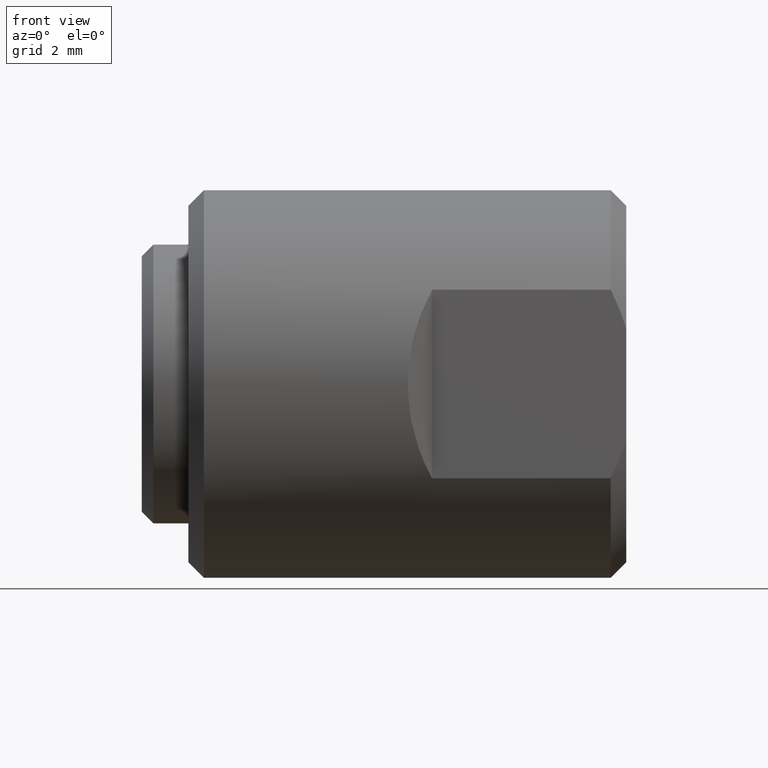
[diagram: clean part render]
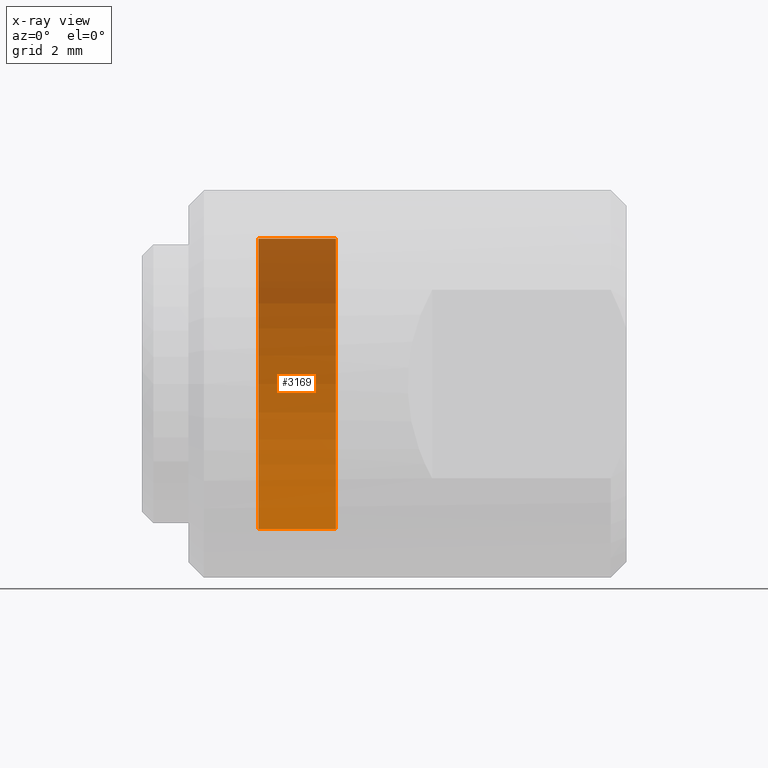
[diagram: x-ray — body ghosted, one internal face saturated and labeled with its STEP entity id]
A machine part, front view, then the same camera in x-ray: the body is ghosted and one INTERNAL B-rep face — a face not visible from any outside direction — is saturated and labeled: STEP entity #3169.
In plain terms, the highlighted cylindrical surface (partial cylindrical patch) has radius 4.7498 mm, axis along (-1, -0, -0).
Its self-contained STEP definition (entity closure, byte-faithful):
#305 = AXIS2_PLACEMENT_3D ( 'NONE', #2286, #1515, #10898 ) ;
#365 = ORIENTED_EDGE ( 'NONE', *, *, #1995, .F. ) ;
#517 = AXIS2_PLACEMENT_3D ( 'NONE', #4146, #4031, #1264 ) ;
#607 = EDGE_CURVE ( 'NONE', #10208, #2637, #6299, .T. ) ;
#954 = VERTEX_POINT ( 'NONE', #1686 ) ;
#1264 = DIRECTION ( 'NONE',  ( 0.0000000000000000000, 0.0000000000000000000, 1.000000000000000000 ) ) ;
#1515 = DIRECTION ( 'NONE',  ( -1.000000000000000000, -0.0000000000000000000, -0.0000000000000000000 ) ) ;
#1575 = CARTESIAN_POINT ( 'NONE',  ( 0.0000000000000000000, 0.0000000000000000000, 0.1869999999999999996 ) ) ;
#1686 = CARTESIAN_POINT ( 'NONE',  ( 0.1250000000000000278, 0.0000000000000000000, 0.1869999999999999996 ) ) ;
#1995 = EDGE_CURVE ( 'NONE', #954, #7294, #3500, .T. ) ;
#2286 = CARTESIAN_POINT ( 'NONE',  ( 0.02499999999999999098, 0.0000000000000000000, 0.0000000000000000000 ) ) ;
#2637 = VERTEX_POINT ( 'NONE', #3898 ) ;
#3169 = ADVANCED_FACE ( 'NONE', ( #7851 ), #10876, .F. ) ;
#3500 = CIRCLE ( 'NONE', #5494, 0.1869999999999999996 ) ;
#3707 = CARTESIAN_POINT ( 'NONE',  ( 0.1250000000000000278, 0.0000000000000000000, 0.0000000000000000000 ) ) ;
#3898 = CARTESIAN_POINT ( 'NONE',  ( 0.02499999999999999098, 2.290089514405550973E-17, -0.1869999999999999996 ) ) ;
#4031 = DIRECTION ( 'NONE',  ( -1.000000000000000000, -0.0000000000000000000, -0.0000000000000000000 ) ) ;
#4146 = CARTESIAN_POINT ( 'NONE',  ( 0.0000000000000000000, 0.0000000000000000000, 0.0000000000000000000 ) ) ;
#4853 = ORIENTED_EDGE ( 'NONE', *, *, #12226, .T. ) ;
#5494 = AXIS2_PLACEMENT_3D ( 'NONE', #3707, #7532, #11379 ) ;
#6086 = CARTESIAN_POINT ( 'NONE',  ( 0.02499999999999999098, 0.0000000000000000000, 0.1869999999999999996 ) ) ;
#6299 = CIRCLE ( 'NONE', #305, 0.1869999999999999996 ) ;
#6453 = EDGE_CURVE ( 'NONE', #7294, #2637, #11372, .T. ) ;
#7294 = VERTEX_POINT ( 'NONE', #12152 ) ;
#7532 = DIRECTION ( 'NONE',  ( -1.000000000000000000, -0.0000000000000000000, -0.0000000000000000000 ) ) ;
#7851 = FACE_OUTER_BOUND ( 'NONE', #9735, .T. ) ;
#8194 = VECTOR ( 'NONE', #9978, 39.37007874015748143 ) ;
#8641 = ORIENTED_EDGE ( 'NONE', *, *, #607, .T. ) ;
#9550 = DIRECTION ( 'NONE',  ( -1.000000000000000000, -0.0000000000000000000, -0.0000000000000000000 ) ) ;
#9735 = EDGE_LOOP ( 'NONE', ( #10690, #365, #4853, #8641 ) ) ;
#9744 = VECTOR ( 'NONE', #9550, 39.37007874015748143 ) ;
#9978 = DIRECTION ( 'NONE',  ( -1.000000000000000000, -0.0000000000000000000, -0.0000000000000000000 ) ) ;
#10208 = VERTEX_POINT ( 'NONE', #6086 ) ;
#10372 = LINE ( 'NONE', #1575, #8194 ) ;
#10690 = ORIENTED_EDGE ( 'NONE', *, *, #6453, .F. ) ;
#10876 = CYLINDRICAL_SURFACE ( 'NONE', #517, 0.1869999999999999996 ) ;
#10898 = DIRECTION ( 'NONE',  ( 0.0000000000000000000, 0.0000000000000000000, 1.000000000000000000 ) ) ;
#11372 = LINE ( 'NONE', #11438, #9744 ) ;
#11379 = DIRECTION ( 'NONE',  ( 0.0000000000000000000, 0.0000000000000000000, 1.000000000000000000 ) ) ;
#11438 = CARTESIAN_POINT ( 'NONE',  ( 0.0000000000000000000, 2.290089514405550973E-17, -0.1869999999999999996 ) ) ;
#12152 = CARTESIAN_POINT ( 'NONE',  ( 0.1250000000000000278, 2.290089514405550973E-17, -0.1869999999999999996 ) ) ;
#12226 = EDGE_CURVE ( 'NONE', #954, #10208, #10372, .T. ) ;